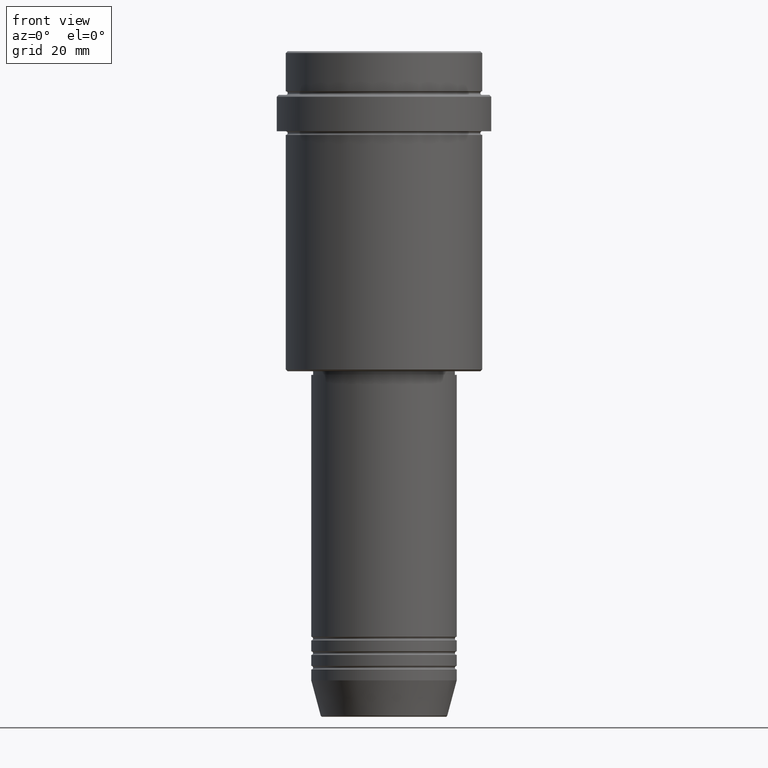
[diagram: clean part render]
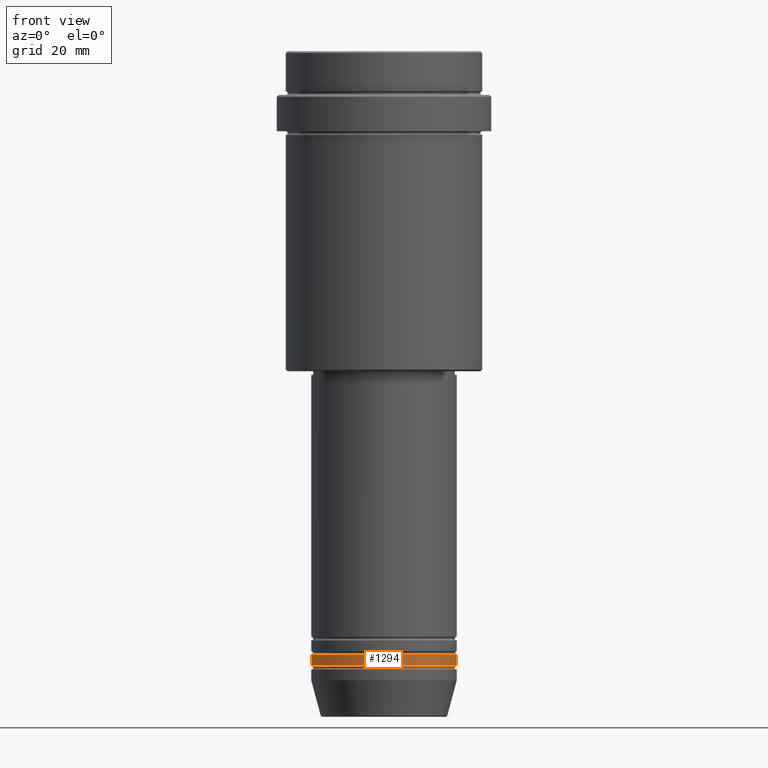
[diagram: same view with one face highlighted and labeled with its STEP entity id]
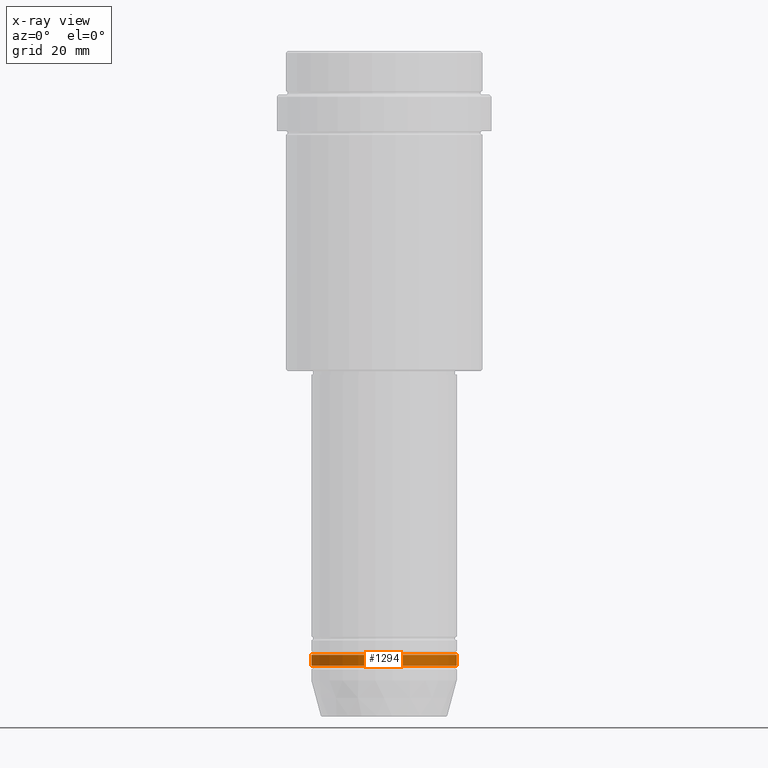
[diagram: x-ray of the same camera — body ghosted, the highlighted face saturated]
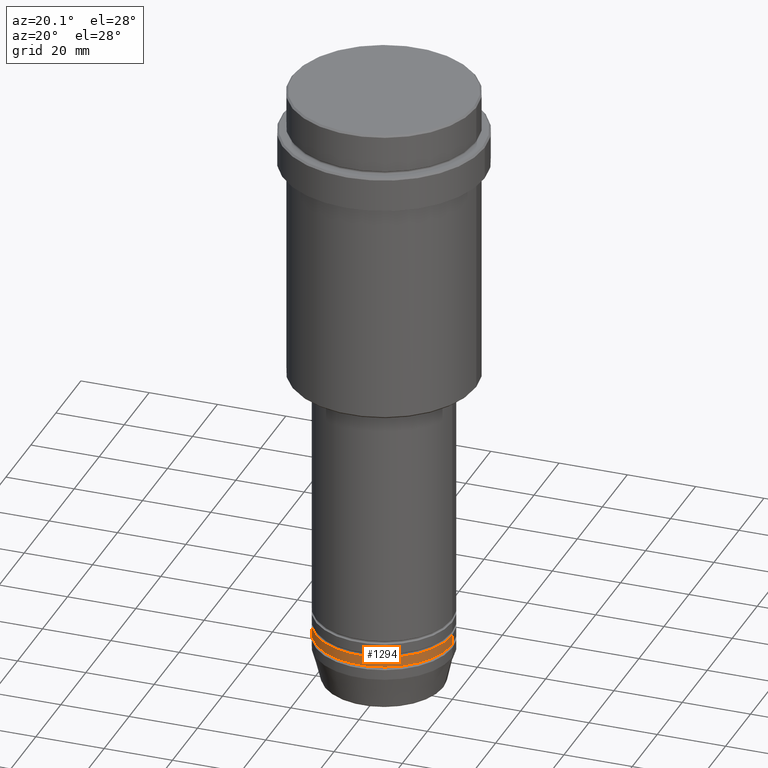
[diagram: same view with one face highlighted and labeled with its STEP entity id]
A machine part, front view. The second image highlights one B-rep face of the part: STEP entity #1294.
The next image is the same camera in x-ray: the body ghosted, the highlighted face saturated — about 0% of this face is hidden behind the body in this view.
A second angle (auxiliary view) of the same face is appended — the face is thin or edge-on in the first view.
In plain terms, the highlighted cylindrical surface (partial cylindrical patch) has radius 20 mm, axis along (-0, -0, 1).
Its self-contained STEP definition (entity closure, byte-faithful):
#30 = EDGE_CURVE ( 'NONE', #1067, #233, #641, .T. ) ;
#106 = CIRCLE ( 'NONE', #573, 20.00000000000000000 ) ;
#191 = ORIENTED_EDGE ( 'NONE', *, *, #738, .T. ) ;
#233 = VERTEX_POINT ( 'NONE', #1018 ) ;
#249 = CARTESIAN_POINT ( 'NONE',  ( 0.000000000000000000, 0.000000000000000000, 0.000000000000000000 ) ) ;
#293 = CARTESIAN_POINT ( 'NONE',  ( 20.00000000000000000, 0.000000000000000000, -168.9999999999998863 ) ) ;
#300 = DIRECTION ( 'NONE',  ( -0.000000000000000000, -0.000000000000000000, 1.000000000000000000 ) ) ;
#332 = AXIS2_PLACEMENT_3D ( 'NONE', #333, #785, #1109 ) ;
#333 = CARTESIAN_POINT ( 'NONE',  ( 0.000000000000000000, 0.000000000000000000, -165.9999999999998579 ) ) ;
#385 = DIRECTION ( 'NONE',  ( -0.000000000000000000, -0.000000000000000000, 1.000000000000000000 ) ) ;
#458 = CYLINDRICAL_SURFACE ( 'NONE', #1008, 20.00000000000000000 ) ;
#498 = CARTESIAN_POINT ( 'NONE',  ( -20.00000000000000000, 2.449293598294706513E-15, -168.9999999999998863 ) ) ;
#573 = AXIS2_PLACEMENT_3D ( 'NONE', #903, #893, #789 ) ;
#592 = DIRECTION ( 'NONE',  ( 1.000000000000000000, 0.000000000000000000, 0.000000000000000000 ) ) ;
#598 = VECTOR ( 'NONE', #385, 1000.000000000000000 ) ;
#629 = CARTESIAN_POINT ( 'NONE',  ( 20.00000000000000000, 0.000000000000000000, -165.9999999999998579 ) ) ;
#641 = LINE ( 'NONE', #778, #1145 ) ;
#656 = EDGE_CURVE ( 'NONE', #233, #1069, #687, .T. ) ;
#687 = CIRCLE ( 'NONE', #332, 20.00000000000000000 ) ;
#738 = EDGE_CURVE ( 'NONE', #959, #1069, #1258, .T. ) ;
#770 = ORIENTED_EDGE ( 'NONE', *, *, #30, .F. ) ;
#778 = CARTESIAN_POINT ( 'NONE',  ( -20.00000000000000000, 2.449293598294706513E-15, 0.000000000000000000 ) ) ;
#779 = DIRECTION ( 'NONE',  ( -0.000000000000000000, -0.000000000000000000, 1.000000000000000000 ) ) ;
#785 = DIRECTION ( 'NONE',  ( -0.000000000000000000, -0.000000000000000000, 1.000000000000000000 ) ) ;
#789 = DIRECTION ( 'NONE',  ( 1.000000000000000000, 0.000000000000000000, 0.000000000000000000 ) ) ;
#830 = CARTESIAN_POINT ( 'NONE',  ( 20.00000000000000000, 0.000000000000000000, 0.000000000000000000 ) ) ;
#881 = EDGE_CURVE ( 'NONE', #1067, #959, #106, .T. ) ;
#887 = ORIENTED_EDGE ( 'NONE', *, *, #656, .F. ) ;
#893 = DIRECTION ( 'NONE',  ( -0.000000000000000000, -0.000000000000000000, 1.000000000000000000 ) ) ;
#903 = CARTESIAN_POINT ( 'NONE',  ( 0.000000000000000000, 0.000000000000000000, -168.9999999999998863 ) ) ;
#959 = VERTEX_POINT ( 'NONE', #293 ) ;
#1008 = AXIS2_PLACEMENT_3D ( 'NONE', #249, #779, #592 ) ;
#1018 = CARTESIAN_POINT ( 'NONE',  ( -20.00000000000000000, 2.449293598294706513E-15, -165.9999999999998579 ) ) ;
#1067 = VERTEX_POINT ( 'NONE', #498 ) ;
#1069 = VERTEX_POINT ( 'NONE', #629 ) ;
#1109 = DIRECTION ( 'NONE',  ( 1.000000000000000000, 0.000000000000000000, 0.000000000000000000 ) ) ;
#1145 = VECTOR ( 'NONE', #300, 1000.000000000000000 ) ;
#1182 = ORIENTED_EDGE ( 'NONE', *, *, #881, .T. ) ;
#1258 = LINE ( 'NONE', #830, #598 ) ;
#1294 = ADVANCED_FACE ( 'NONE', ( #1319 ), #458, .T. ) ;
#1319 = FACE_OUTER_BOUND ( 'NONE', #1330, .T. ) ;
#1330 = EDGE_LOOP ( 'NONE', ( #770, #1182, #191, #887 ) ) ;